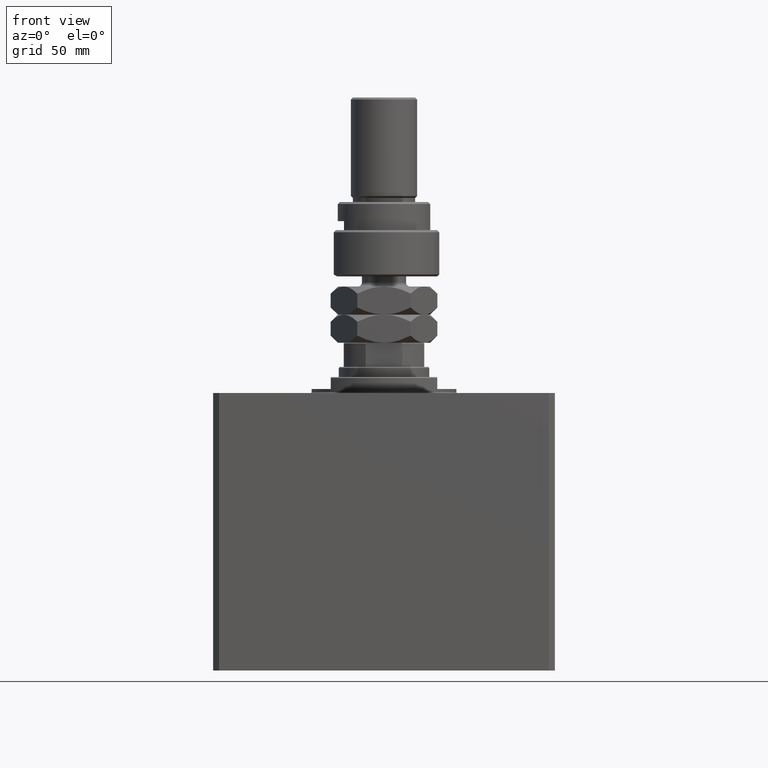
[diagram: clean part render]
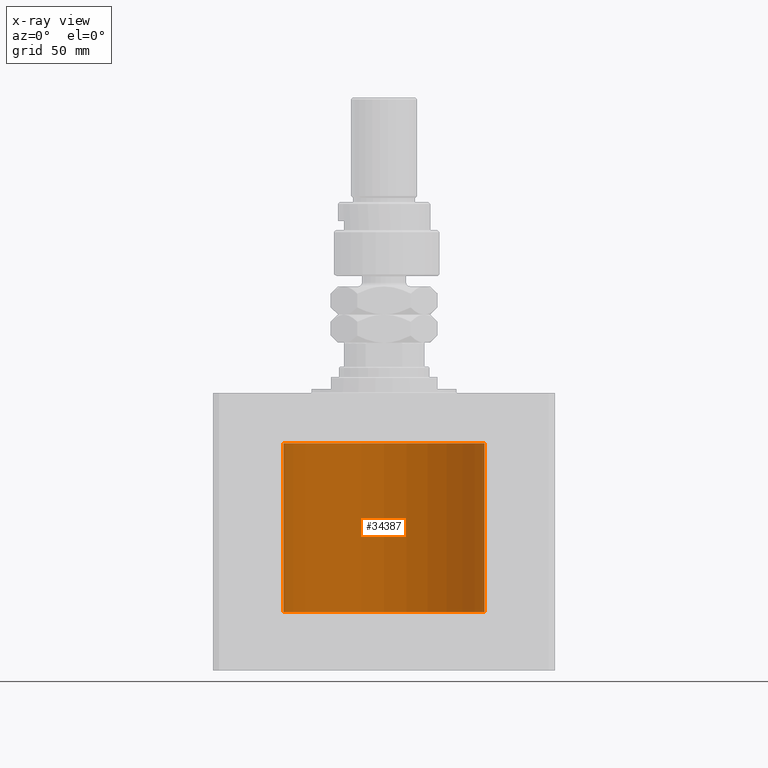
[diagram: x-ray — body ghosted, one internal face saturated and labeled with its STEP entity id]
A machine part, front view, then the same camera in x-ray: the body is ghosted and one INTERNAL B-rep face — a face not visible from any outside direction — is saturated and labeled: STEP entity #34387.
In plain terms, the highlighted cylindrical surface (partial cylindrical patch) has radius 50 mm, axis along (0, 0, 1).
Its self-contained STEP definition (entity closure, byte-faithful):
#178 = CARTESIAN_POINT ( 'NONE',  ( -50.00000000000000000, -9.003882097956092458E-15, -34.99999999999999289 ) ) ;
#861 = ORIENTED_EDGE ( 'NONE', *, *, #2655, .T. ) ;
#880 = B_SPLINE_CURVE_WITH_KNOTS ( 'NONE', 3,
 ( #178, #15627, #5466, #16372, #36190, #47325, #28548, #17127, #9266, #24751, #20931, #47569, #48067, #9017, #40233, #932, #12320, #5715, #35937, #16125, #32622, #40476, #31870, #27807, #12815, #12569, #13316, #28306, #24002, #28055 ),
 .UNSPECIFIED., .F., .F.,
 ( 4, 2, 2, 2, 2, 2, 2, 2, 2, 2, 2, 2, 2, 2, 4 ),
 ( 1.951448278188086515E-19, 0.0003908460679639682526, 0.0007816921359279362883, 0.001172538203891904324, 0.001563384271855872360, 0.002345076407783809082, 0.003126768543711746021, 0.003517614611675714056, 0.003908460679639682092, 0.004299306747603650128, 0.004690152815567618164, 0.005080998883531586199, 0.005471844951495554235, 0.005862691019459522271, 0.006253537087423490307 ),
 .UNSPECIFIED. ) ;
#932 = CARTESIAN_POINT ( 'NONE',  ( -49.96251288907240706, 1.935964606501246799, -37.51879205273049678 ) ) ;
#1552 = CARTESIAN_POINT ( 'NONE',  ( -50.00000000000000000, 6.123233995736766085E-15, -25.00000000000000711 ) ) ;
#1992 = CARTESIAN_POINT ( 'NONE',  ( 49.98524326844813004, 1.219541607305973274, -102.5905382022621950 ) ) ;
#2207 = ORIENTED_EDGE ( 'NONE', *, *, #26067, .T. ) ;
#2632 = B_SPLINE_CURVE_WITH_KNOTS ( 'NONE', 3,
 ( #34644, #42984, #7730, #39184, #8229, #46525, #47025, #3676, #4676, #19384, #4431, #19893, #50071, #12270, #19636, #20137, #35391, #15316 ),
 .UNSPECIFIED., .F., .F.,
 ( 4, 2, 2, 2, 2, 2, 2, 2, 4 ),
 ( 0.003127478965430518024, 0.003518236230679781373, 0.003908993495929044722, 0.004299750761178307637, 0.004690508026427571420, 0.005081265291676834335, 0.005472022556926097250, 0.005862779822175361033, 0.006253537087424623948 ),
 .UNSPECIFIED. ) ;
#2655 = EDGE_CURVE ( 'NONE', #38456, #7889, #19536, .T. ) ;
#3302 = EDGE_CURVE ( 'NONE', #12346, #7889, #32642, .T. ) ;
#3655 = CARTESIAN_POINT ( 'NONE',  ( -50.00000000000000000, -9.003882097956092458E-15, -34.99999999999999289 ) ) ;
#3676 = CARTESIAN_POINT ( 'NONE',  ( 49.97475596784978080, 1.590287868744626465, -99.78017932967553349 ) ) ;
#4431 = CARTESIAN_POINT ( 'NONE',  ( 49.98523696312182096, 1.219762141829697999, -99.40967013674318764 ) ) ;
#4676 = CARTESIAN_POINT ( 'NONE',  ( 49.97735290927441554, 1.507618726120014019, -99.67920111852205878 ) ) ;
#4760 = CIRCLE ( 'NONE', #32277, 50.00000000000000000 ) ;
#5037 = DIRECTION ( 'NONE',  ( -0.000000000000000000, -0.000000000000000000, 1.000000000000000000 ) ) ;
#5466 = CARTESIAN_POINT ( 'NONE',  ( -49.99947640732126786, 0.2621063239499291098, -35.01297064418641014 ) ) ;
#5489 = ORIENTED_EDGE ( 'NONE', *, *, #6883, .T. ) ;
#5715 = CARTESIAN_POINT ( 'NONE',  ( -49.96768660357033554, 1.798001154690308967, -37.88564223843271606 ) ) ;
#6166 = ORIENTED_EDGE ( 'NONE', *, *, #40075, .T. ) ;
#6883 = EDGE_CURVE ( 'NONE', #26979, #28996, #2632, .T. ) ;
#7219 = CARTESIAN_POINT ( 'NONE',  ( 50.00000000000000000, 0.000000000000000000, -109.0999999999999943 ) ) ;
#7730 = CARTESIAN_POINT ( 'NONE',  ( 49.96051123778291725, 1.986950357331387140, -100.7370861026879965 ) ) ;
#7889 = VERTEX_POINT ( 'NONE', #1552 ) ;
#8229 = CARTESIAN_POINT ( 'NONE',  ( 49.96398801900035380, 1.898003203340656198, -100.3559911791024746 ) ) ;
#9017 = CARTESIAN_POINT ( 'NONE',  ( -49.95998213453558634, 2.000046279225707213, -37.12975027192857880 ) ) ;
#9260 = AXIS2_PLACEMENT_3D ( 'NONE', #47363, #28093, #24288 ) ;
#9266 = CARTESIAN_POINT ( 'NONE',  ( -49.98259925701036366, 1.322227939264704055, -35.49376754264949341 ) ) ;
#9579 = CARTESIAN_POINT ( 'NONE',  ( 50.00000000000000000, 4.564789087886820642E-17, -103.0000000000000284 ) ) ;
#10095 = LINE ( 'NONE', #47635, #13743 ) ;
#12017 = ORIENTED_EDGE ( 'NONE', *, *, #49984, .F. ) ;
#12270 = CARTESIAN_POINT ( 'NONE',  ( 49.99599990398858296, 0.6439560014968555013, -99.10196939152022821 ) ) ;
#12320 = CARTESIAN_POINT ( 'NONE',  ( -49.96398106625520086, 1.898185627324846303, -37.64347622409935212 ) ) ;
#12346 = VERTEX_POINT ( 'NONE', #3655 ) ;
#12385 = CARTESIAN_POINT ( 'NONE',  ( 49.95998398718716516, 2.000000000000563549, -101.0000000000000142 ) ) ;
#12569 = CARTESIAN_POINT ( 'NONE',  ( -49.99599814809604226, 0.6440968921210813436, -38.89798495722402549 ) ) ;
#12815 = CARTESIAN_POINT ( 'NONE',  ( -49.99228773711749341, 0.8864865707480856782, -38.79759541170199100 ) ) ;
#12879 = CARTESIAN_POINT ( 'NONE',  ( 49.99007528730422933, 1.002097354324908984, -102.7357691082803939 ) ) ;
#13316 = CARTESIAN_POINT ( 'NONE',  ( -49.99746633848589283, 0.5194059499681270564, -38.93579253716512767 ) ) ;
#13743 = VECTOR ( 'NONE', #5037, 1000.000000000000000 ) ;
#13899 = VECTOR ( 'NONE', #25270, 1000.000000000000000 ) ;
#14996 = DIRECTION ( 'NONE',  ( 1.000000000000000000, 0.000000000000000000, 0.000000000000000000 ) ) ;
#15316 = CARTESIAN_POINT ( 'NONE',  ( 50.00000000000000000, -6.476745247090812175E-24, -99.00000000000001421 ) ) ;
#15627 = CARTESIAN_POINT ( 'NONE',  ( -50.00000000000000711, 0.1321588334531834663, -34.99999999999998579 ) ) ;
#16125 = CARTESIAN_POINT ( 'NONE',  ( -49.97474787754178749, 1.590541763713786860, -38.21949285922860184 ) ) ;
#16372 = CARTESIAN_POINT ( 'NONE',  ( -49.99748258676788026, 0.5177602892975206039, -35.06378986968200451 ) ) ;
#16546 = EDGE_CURVE ( 'NONE', #28242, #31454, #4760, .T. ) ;
#16933 = CARTESIAN_POINT ( 'NONE',  ( 49.99598718814007015, 0.6449352407546056209, -102.8976971177264517 ) ) ;
#17127 = CARTESIAN_POINT ( 'NONE',  ( -49.98524905102831184, 1.219303128102697586, -35.40928153240807319 ) ) ;
#17160 = CYLINDRICAL_SURFACE ( 'NONE', #9260, 50.00000000000000000 ) ;
#17191 = CARTESIAN_POINT ( 'NONE',  ( 49.99227494580978259, 0.8871990329080465809, -102.7972405769406521 ) ) ;
#17441 = CARTESIAN_POINT ( 'NONE',  ( 49.96952841668770162, 1.748193601366643479, -102.0058470866195535 ) ) ;
#18863 = CARTESIAN_POINT ( 'NONE',  ( 50.00000000000000000, -6.476745247090812175E-24, -99.00000000000001421 ) ) ;
#19131 = LINE ( 'NONE', #7219, #23892 ) ;
#19384 = CARTESIAN_POINT ( 'NONE',  ( 49.98263500888552358, 1.320952538904951457, -99.49251590435541459 ) ) ;
#19536 = CIRCLE ( 'NONE', #47895, 50.00000000000000000 ) ;
#19636 = CARTESIAN_POINT ( 'NONE',  ( 49.99746746122490038, 0.5192910711913449884, -99.06417861566059457 ) ) ;
#19893 = CARTESIAN_POINT ( 'NONE',  ( 49.99005286890574951, 1.003169031662882960, -99.26488598342365322 ) ) ;
#20137 = CARTESIAN_POINT ( 'NONE',  ( 49.99947219664575471, 0.2630509640965526530, -99.01307477770993160 ) ) ;
#20931 = CARTESIAN_POINT ( 'NONE',  ( -49.96953708402610062, 1.747948211813102892, -35.99374183287712725 ) ) ;
#22425 = CARTESIAN_POINT ( 'NONE',  ( -50.00000000000000000, 6.123233989258355553E-15, -38.99999999999999289 ) ) ;
#22691 = DIRECTION ( 'NONE',  ( -0.000000000000000000, -0.000000000000000000, 1.000000000000000000 ) ) ;
#23892 = VECTOR ( 'NONE', #22691, 1000.000000000000000 ) ;
#23952 = EDGE_CURVE ( 'NONE', #28242, #43108, #28004, .T. ) ;
#24002 = CARTESIAN_POINT ( 'NONE',  ( -50.00000000000001421, 0.1305374531515847703, -38.99999999999999289 ) ) ;
#24288 = DIRECTION ( 'NONE',  ( 1.000000000000000000, 0.000000000000000000, 0.000000000000000000 ) ) ;
#24751 = CARTESIAN_POINT ( 'NONE',  ( -49.97476780406313424, 1.598950834465297177, -35.77059039179120958 ) ) ;
#25270 = DIRECTION ( 'NONE',  ( -0.000000000000000000, -0.000000000000000000, 1.000000000000000000 ) ) ;
#25646 = DIRECTION ( 'NONE',  ( 0.000000000000000000, 0.000000000000000000, 1.000000000000000000 ) ) ;
#26067 = EDGE_CURVE ( 'NONE', #12346, #42163, #880, .T. ) ;
#26922 = CARTESIAN_POINT ( 'NONE',  ( 0.000000000000000000, 0.000000000000000000, -109.0999999999999943 ) ) ;
#26979 = VERTEX_POINT ( 'NONE', #46587 ) ;
#27210 = EDGE_LOOP ( 'NONE', ( #12017, #36164, #30635, #6166, #5489, #48590, #861, #32592, #2207 ) ) ;
#27807 = CARTESIAN_POINT ( 'NONE',  ( -49.99004874905787688, 1.003375892571688910, -38.73499659467171341 ) ) ;
#28004 = LINE ( 'NONE', #28254, #48575 ) ;
#28055 = CARTESIAN_POINT ( 'NONE',  ( -50.00000000000000000, 6.123233989258355553E-15, -38.99999999999999289 ) ) ;
#28093 = DIRECTION ( 'NONE',  ( -0.000000000000000000, -0.000000000000000000, 1.000000000000000000 ) ) ;
#28117 = CARTESIAN_POINT ( 'NONE',  ( 49.99947616946592177, 0.2621653831979099958, -102.9870235173230100 ) ) ;
#28242 = VERTEX_POINT ( 'NONE', #41386 ) ;
#28254 = CARTESIAN_POINT ( 'NONE',  ( 50.00000000000000000, 0.000000000000000000, -109.0999999999999943 ) ) ;
#28306 = CARTESIAN_POINT ( 'NONE',  ( -49.99947195246410558, 0.2631107820817846776, -38.98691922436691470 ) ) ;
#28548 = CARTESIAN_POINT ( 'NONE',  ( -49.99007938266582585, 1.001891274688315958, -35.26411427938287346 ) ) ;
#28750 = DIRECTION ( 'NONE',  ( -0.000000000000000000, -0.000000000000000000, 1.000000000000000000 ) ) ;
#28837 = FACE_OUTER_BOUND ( 'NONE', #27210, .T. ) ;
#28996 = VERTEX_POINT ( 'NONE', #18863 ) ;
#30635 = ORIENTED_EDGE ( 'NONE', *, *, #23952, .T. ) ;
#31454 = VERTEX_POINT ( 'NONE', #45685 ) ;
#31870 = CARTESIAN_POINT ( 'NONE',  ( -49.98523123236354593, 1.219998263164736807, -38.59015112589698759 ) ) ;
#32277 = AXIS2_PLACEMENT_3D ( 'NONE', #26922, #49005, #14996 ) ;
#32592 = ORIENTED_EDGE ( 'NONE', *, *, #3302, .F. ) ;
#32622 = CARTESIAN_POINT ( 'NONE',  ( -49.97734518528593384, 1.507874855161120076, -38.32050907330479106 ) ) ;
#32642 = LINE ( 'NONE', #40499, #13899 ) ;
#34387 = ADVANCED_FACE ( 'NONE', ( #28837 ), #17160, .F. ) ;
#34644 = CARTESIAN_POINT ( 'NONE',  ( 49.95998398718716516, 2.000000000000563549, -101.0000000000000142 ) ) ;
#35391 = CARTESIAN_POINT ( 'NONE',  ( 50.00000000000000000, 0.1305077942112368161, -98.99999999999997158 ) ) ;
#35937 = CARTESIAN_POINT ( 'NONE',  ( -49.96992887184637055, 1.735355026673580214, -38.00276062309308855 ) ) ;
#35998 = CARTESIAN_POINT ( 'NONE',  ( 50.00000000000000711, 0.1321888607815029093, -103.0000000000000568 ) ) ;
#36164 = ORIENTED_EDGE ( 'NONE', *, *, #16546, .F. ) ;
#36190 = CARTESIAN_POINT ( 'NONE',  ( -49.99598898362840771, 0.6447919409892277631, -35.10225615370830354 ) ) ;
#36246 = CARTESIAN_POINT ( 'NONE',  ( 49.99748146545036320, 0.5178754880116728243, -102.9361813255630125 ) ) ;
#38456 = VERTEX_POINT ( 'NONE', #47744 ) ;
#39161 = CARTESIAN_POINT ( 'NONE',  ( 50.00000000000000000, 4.564789087886820642E-17, -103.0000000000000284 ) ) ;
#39184 = CARTESIAN_POINT ( 'NONE',  ( 49.96251892914505532, 1.935809163618958051, -100.4806366185916318 ) ) ;
#39723 = EDGE_CURVE ( 'NONE', #28996, #38456, #19131, .T. ) ;
#39802 = CARTESIAN_POINT ( 'NONE',  ( 49.98259270595343651, 1.322475809934057889, -102.5060172839779113 ) ) ;
#40075 = EDGE_CURVE ( 'NONE', #43108, #26979, #45227, .T. ) ;
#40233 = CARTESIAN_POINT ( 'NONE',  ( -49.96050770337905789, 1.987038794023258559, -37.26226128698008466 ) ) ;
#40476 = CARTESIAN_POINT ( 'NONE',  ( -49.98262832829516356, 1.321205413082626068, -38.50726475708437135 ) ) ;
#40499 = CARTESIAN_POINT ( 'NONE',  ( -50.00000000000000000, 6.123233995736766085E-15, -109.0999999999999943 ) ) ;
#40870 = CARTESIAN_POINT ( 'NONE',  ( 0.000000000000000000, 0.000000000000000000, -25.00000000000000711 ) ) ;
#41117 = DIRECTION ( 'NONE',  ( 1.000000000000000000, 0.000000000000000000, 0.000000000000000000 ) ) ;
#41386 = CARTESIAN_POINT ( 'NONE',  ( 50.00000000000000000, 0.000000000000000000, -109.0999999999999943 ) ) ;
#42163 = VERTEX_POINT ( 'NONE', #22425 ) ;
#42984 = CARTESIAN_POINT ( 'NONE',  ( 49.95998398718716516, 2.000000000000564881, -100.8695654969272084 ) ) ;
#43108 = VERTEX_POINT ( 'NONE', #39161 ) ;
#43591 = CARTESIAN_POINT ( 'NONE',  ( 49.96215500645249818, 1.947567242801464760, -101.5243005476701228 ) ) ;
#44086 = CARTESIAN_POINT ( 'NONE',  ( 49.95998398718717226, 2.000000000000561773, -101.2609875752831385 ) ) ;
#45227 = B_SPLINE_CURVE_WITH_KNOTS ( 'NONE', 3,
 ( #9579, #35998, #28117, #36246, #16933, #17191, #12879, #1992, #39802, #47887, #17441, #43591, #44086, #12385 ),
 .UNSPECIFIED., .F., .F.,
 ( 4, 2, 2, 2, 2, 2, 4 ),
 ( 4.436058941706983627E-20, 0.0003909348706788146445, 0.0007818697413576291807, 0.001172804612036443825, 0.001563739482715258361, 0.002345609224072888084, 0.003127478965430518024 ),
 .UNSPECIFIED. ) ;
#45685 = CARTESIAN_POINT ( 'NONE',  ( -50.00000000000000000, 6.123233995736766085E-15, -109.0999999999999943 ) ) ;
#46525 = CARTESIAN_POINT ( 'NONE',  ( 49.96769480970100119, 1.797773714148178881, -100.1139000090266507 ) ) ;
#46587 = CARTESIAN_POINT ( 'NONE',  ( 49.95998398718716516, 2.000000000000563549, -101.0000000000000142 ) ) ;
#47025 = CARTESIAN_POINT ( 'NONE',  ( 49.96993720661966876, 1.735115303979041013, -99.99682860132224960 ) ) ;
#47325 = CARTESIAN_POINT ( 'NONE',  ( -49.99227820941651146, 0.8870121366447422107, -35.20266925059756602 ) ) ;
#47363 = CARTESIAN_POINT ( 'NONE',  ( 0.000000000000000000, 0.000000000000000000, -109.0999999999999943 ) ) ;
#47569 = CARTESIAN_POINT ( 'NONE',  ( -49.96216141728076821, 1.947404903100933504, -36.47512611661414184 ) ) ;
#47635 = CARTESIAN_POINT ( 'NONE',  ( -50.00000000000000000, 6.123233995736766085E-15, -109.0999999999999943 ) ) ;
#47744 = CARTESIAN_POINT ( 'NONE',  ( 50.00000000000000000, 0.000000000000000000, -25.00000000000000711 ) ) ;
#47887 = CARTESIAN_POINT ( 'NONE',  ( 49.97475955401471026, 1.599209500590070165, -102.2290851407538668 ) ) ;
#47895 = AXIS2_PLACEMENT_3D ( 'NONE', #40870, #25646, #41117 ) ;
#48067 = CARTESIAN_POINT ( 'NONE',  ( -49.95998770768563446, 1.999907061972440614, -36.73836523183381786 ) ) ;
#48575 = VECTOR ( 'NONE', #28750, 1000.000000000000000 ) ;
#48590 = ORIENTED_EDGE ( 'NONE', *, *, #39723, .T. ) ;
#49005 = DIRECTION ( 'NONE',  ( 0.000000000000000000, 0.000000000000000000, 1.000000000000000000 ) ) ;
#49984 = EDGE_CURVE ( 'NONE', #31454, #42163, #10095, .T. ) ;
#50071 = CARTESIAN_POINT ( 'NONE',  ( 49.99229103891970993, 0.8862970221311291530, -99.20231340018575850 ) ) ;